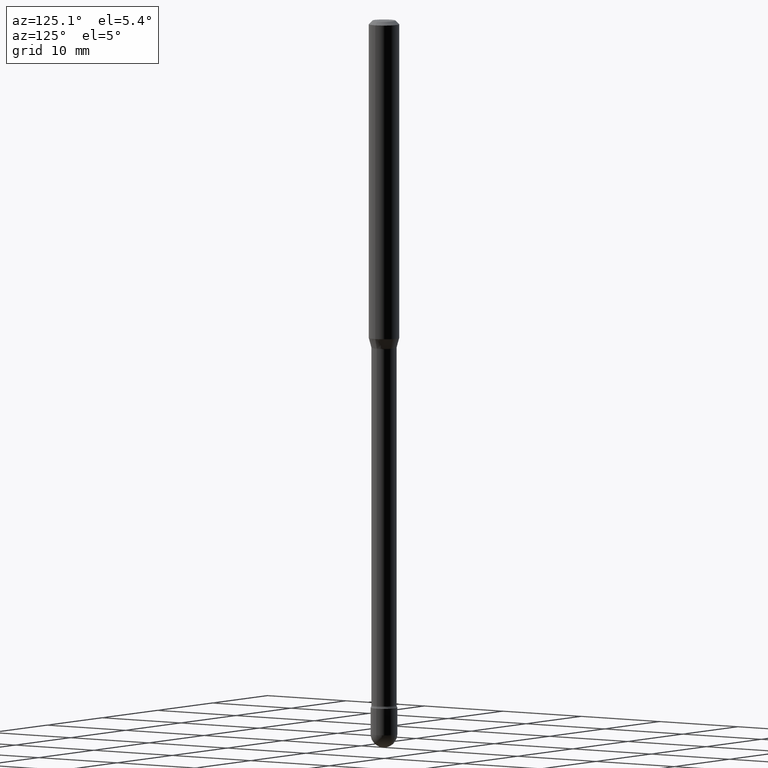
[diagram: clean part render]
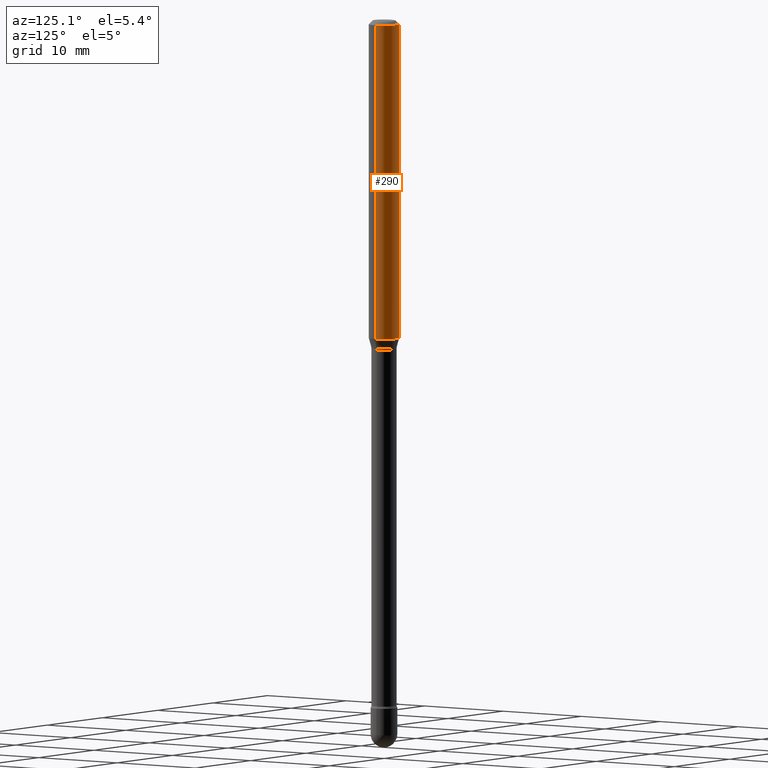
[diagram: same view with one face highlighted and labeled with its STEP entity id]
A machine part, auxiliary view. The second image highlights one B-rep face of the part: STEP entity #290.
In plain terms, the highlighted cylindrical surface (edge-blend (fillet) strip) has radius 1.5875 mm, axis along (-0, 0, 1).
Its self-contained STEP definition (entity closure, byte-faithful):
#1 = DIRECTION ( 'NONE',  ( -2.445468806185136877E-29, 3.491481338843145188E-15, 1.000000000000000000 ) ) ;
#12 = CARTESIAN_POINT ( 'NONE',  ( -0.06250000000000000000, -1.868482720859080812E-15, -0.01500000000000008271 ) ) ;
#20 = VECTOR ( 'NONE', #230, 39.37007874015748143 ) ;
#24 = CARTESIAN_POINT ( 'NONE',  ( 0.06250000000000000000, -5.009206808691031841E-15, -1.309693851278255883 ) ) ;
#40 = ORIENTED_EDGE ( 'NONE', *, *, #460, .T. ) ;
#48 = LINE ( 'NONE', #217, #150 ) ;
#49 = CARTESIAN_POINT ( 'NONE',  ( 0.06250000000000000000, -4.364351673553899931E-16, 4.780733988912490708E-16 ) ) ;
#69 = EDGE_CURVE ( 'NONE', #341, #479, #478, .T. ) ;
#72 = CARTESIAN_POINT ( 'NONE',  ( -1.169113584055446105E-44, 1.669184350826100908E-30, 4.780733988912460139E-16 ) ) ;
#80 = ORIENTED_EDGE ( 'NONE', *, *, #69, .F. ) ;
#82 = EDGE_LOOP ( 'NONE', ( #558, #40, #320, #80 ) ) ;
#99 = VERTEX_POINT ( 'NONE', #12 ) ;
#115 = CARTESIAN_POINT ( 'NONE',  ( 3.668203209277725232E-31, -5.237222008264747365E-17, -0.01500000000000008271 ) ) ;
#124 = CIRCLE ( 'NONE', #306, 0.06250000000000000000 ) ;
#131 = CARTESIAN_POINT ( 'NONE',  ( 0.06250000000000000000, -4.888073874380391431E-16, -0.01500000000000008271 ) ) ;
#150 = VECTOR ( 'NONE', #1, 39.37007874015748143 ) ;
#171 = VERTEX_POINT ( 'NONE', #438 ) ;
#204 = DIRECTION ( 'NONE',  ( -2.445468806185136597E-29, 3.491481338843145583E-15, 1.000000000000000000 ) ) ;
#217 = CARTESIAN_POINT ( 'NONE',  ( -0.06250000000000000000, 4.440892098500642925E-16, 4.780733988912429571E-16 ) ) ;
#230 = DIRECTION ( 'NONE',  ( -2.445468806185136877E-29, 3.491481338843145188E-15, 1.000000000000000000 ) ) ;
#244 = DIRECTION ( 'NONE',  ( 1.000000000000000000, -6.982962677686266711E-15, 4.852736867747366207E-29 ) ) ;
#290 = ADVANCED_FACE ( 'NONE', ( #484 ), #369, .T. ) ;
#300 = CARTESIAN_POINT ( 'NONE',  ( 3.202815458953449812E-29, -4.572771641335639383E-15, -1.309693851278255883 ) ) ;
#306 = AXIS2_PLACEMENT_3D ( 'NONE', #300, #387, #511 ) ;
#320 = ORIENTED_EDGE ( 'NONE', *, *, #365, .F. ) ;
#330 = AXIS2_PLACEMENT_3D ( 'NONE', #115, #204, #372 ) ;
#341 = VERTEX_POINT ( 'NONE', #24 ) ;
#365 = EDGE_CURVE ( 'NONE', #479, #99, #559, .T. ) ;
#367 = DIRECTION ( 'NONE',  ( -2.445468806185136597E-29, 3.491481338843145583E-15, 1.000000000000000000 ) ) ;
#369 = CYLINDRICAL_SURFACE ( 'NONE', #514, 0.06250000000000000000 ) ;
#372 = DIRECTION ( 'NONE',  ( 1.000000000000000000, -6.982962677686266711E-15, 0.000000000000000000 ) ) ;
#387 = DIRECTION ( 'NONE',  ( -2.445468806185136597E-29, 3.491481338843145583E-15, 1.000000000000000000 ) ) ;
#438 = CARTESIAN_POINT ( 'NONE',  ( -0.06250000000000000000, -4.128682431485577556E-15, -1.309693851278255883 ) ) ;
#446 = EDGE_CURVE ( 'NONE', #341, #171, #124, .T. ) ;
#460 = EDGE_CURVE ( 'NONE', #171, #99, #48, .T. ) ;
#478 = LINE ( 'NONE', #49, #20 ) ;
#479 = VERTEX_POINT ( 'NONE', #131 ) ;
#484 = FACE_OUTER_BOUND ( 'NONE', #82, .T. ) ;
#511 = DIRECTION ( 'NONE',  ( 1.000000000000000000, -6.982962677686262766E-15, 0.000000000000000000 ) ) ;
#514 = AXIS2_PLACEMENT_3D ( 'NONE', #72, #367, #244 ) ;
#558 = ORIENTED_EDGE ( 'NONE', *, *, #446, .T. ) ;
#559 = CIRCLE ( 'NONE', #330, 0.06250000000000000000 ) ;